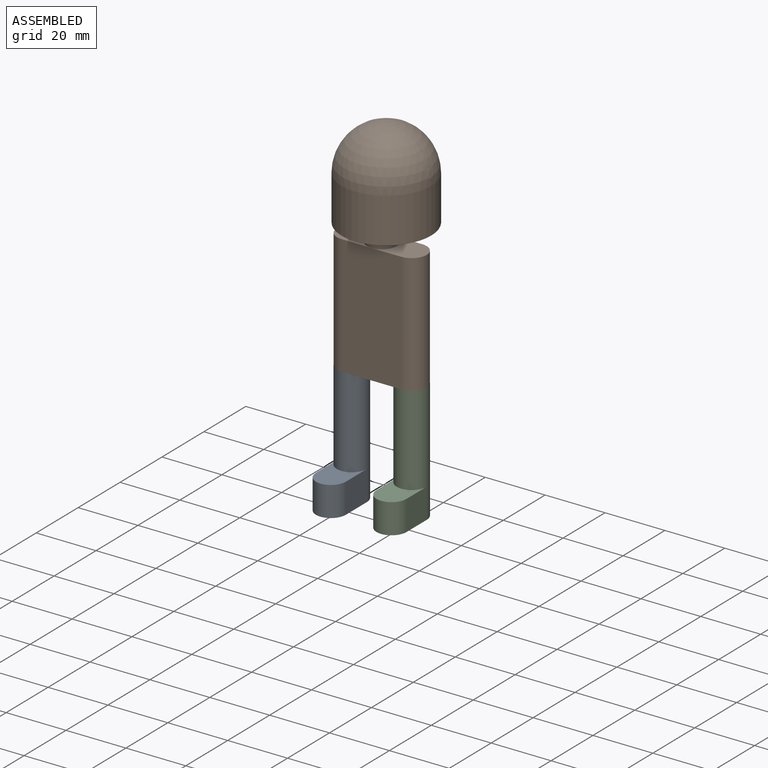
[diagram: assembled view]
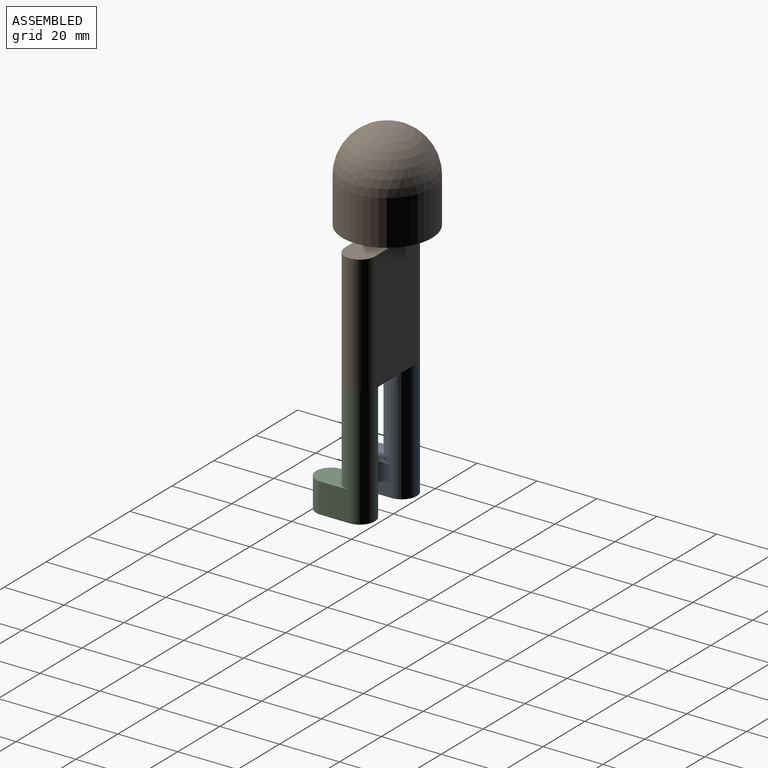
[diagram: assembled view, second angle]
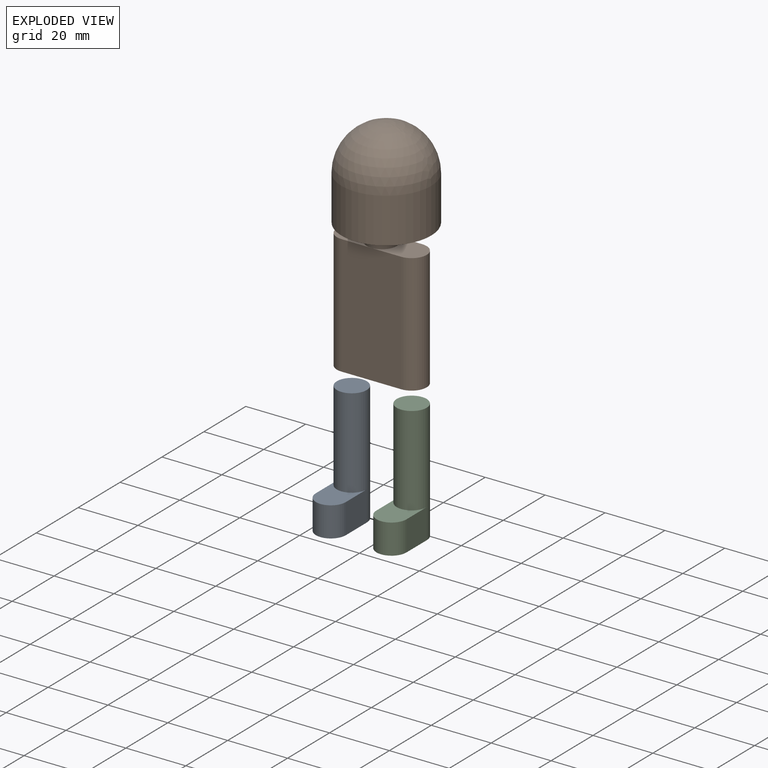
[diagram: exploded view]
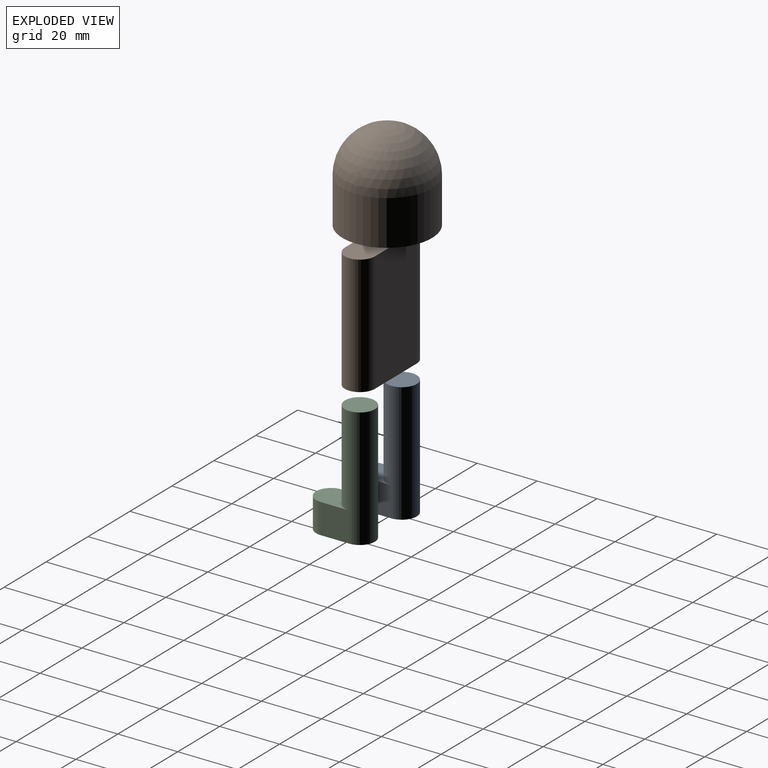
[diagram: exploded view, second angle]
ASSEMBLY  parts=3 mates=2
PART A: 7 faces, bbox 10x20x40 mm
  f0: cylinder r=5mm len=40mm, axis (0,0,1), area 1099.6mm2, adj f1,f2,f3,f5,f6
  f1: plane 10x10mm, normal (0,0,1), area 78.5mm2, adj f0
  f2: plane 10x10mm, normal (-1,0,0), area 100mm2, adj f0,f4,f5,f6
  f3: plane 10x10mm, normal (1,0,0), area 100mm2, adj f0,f4,f5,f6
  f4: cylinder r=5mm len=10mm, axis (0,0,1), area 157.1mm2, adj f2,f3,f5,f6
  f5: plane 20x10mm, normal (0,0,-1), area 178.5mm2, adj f0,f2,f3,f4
  f6: plane 15x10mm, normal (0,0,1), area 100mm2, adj f0,f2,f3,f4
PART B: 11 faces, bbox 30x30x75 mm
  f0: plane 15x10mm, normal (0,0,1), area 100mm2, adj f2,f4,f6,f7
  f1: plane 15x10mm, normal (0,0,1), area 100mm2, adj f2,f4,f5,f7
  f2: plane 40x20mm, normal (0,-1,0), area 800mm2, adj f0,f1,f3,f5,f6
  f3: plane 30x10mm, normal (0,0,-1), area 278.5mm2, adj f2,f4,f5,f6
  f4: plane 40x20mm, normal (0,1,0), area 800mm2, adj f0,f1,f3,f5,f6
  f5: cylinder r=5mm len=40mm, axis (0,0,1), area 628.3mm2, adj f1,f2,f3,f4
  f6: cylinder r=5mm len=40mm, axis (0,0,-1), area 628.3mm2, adj f0,f2,f3,f4
  f7: cylinder r=5mm len=10mm, axis (0,0,-1), area 157.1mm2, adj f0,f1,f8
  f8: plane 30x30mm, normal (0,0,-1), area 628.3mm2, adj f7,f10
  f9: sphere r=15mm, area 1413.7mm2, adj f10
  f10: cylinder r=15mm len=30mm, axis (0,0,-1), area 1413.7mm2, adj f8,f9
PART C: 7 faces, bbox 10x19.6x40 mm
  f0: cylinder r=5mm len=40mm, axis (0,0,1), area 1099.6mm2, adj f1,f2,f3,f5,f6
  f1: plane 10x10mm, normal (0,0,1), area 78.5mm2, adj f0
  f2: plane 10x10mm, normal (-1,0,0), area 100mm2, adj f0,f4,f5,f6
  f3: plane 10x9.61mm, normal (1,0,0), area 96.1mm2, adj f0,f4,f5,f6
  f4: cylinder r=5.01mm len=10mm, axis (0,0,1), area 153.4mm2, adj f2,f3,f5,f6
  f5: plane 19.62x10mm, normal (0,0,-1), area 174.8mm2, adj f0,f2,f3,f4
  f6: plane 14.62x10mm, normal (0,0,1), area 96.2mm2, adj f0,f2,f3,f4
PLACE A t=(-40.5,5.54,9.05)mm
PLACE B t=(-25.41,0.54,9.05)mm
PLACE C t=(-40.5,5.54,9.05)mm
MATE planar A.f0 <-> B.f6  axis (0,0,1) through (-50.41,5.54,9.05)mm
MATE planar C.f0 <-> B.f5  axis (0,0,1) through (-30.41,5.54,9.05)mm
